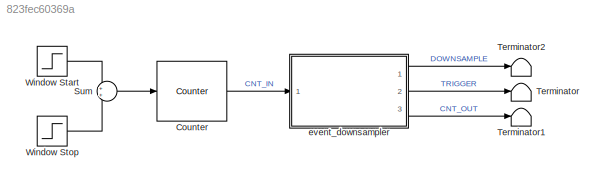
MODEL slx_823fec60369a
KIND model
CONFIG AbsTol = auto
CONFIG EnableMultiTasking = off
CONFIG FixedStep = model_Ts
CONFIG MaxStep = auto
CONFIG MinStep = auto
CONFIG RelTol = 1e-3
CONFIG SampleTimeConstraint = Unconstrained
CONFIG SolverName = FixedStepDiscrete
CONFIG StartTime = 0.0
CONFIG StopTime = 5
WORKSPACE source: mxarray member
WORKSPACE FSM_Ts: Simulink.Parameter (value not decoded)
WORKSPACE model_Ts: Simulink.Parameter (value not decoded)
BLOCK [Reference] Counter  REF=dspswit3/Counter
  Ports = [1, 1]
  SourceBlock = dspswit3/Counter
  SourceProductBaseCode = DS
  SourceType = Counter
BLOCK [Sum] Sum
  Ports = [2, 1]
BLOCK [Terminator] Terminator
BLOCK [Terminator] Terminator1
BLOCK [Terminator] Terminator2
BLOCK [Step] Window Start
  SampleTime = 0
  Time = 0.1
BLOCK [Step] Window Stop
  After = -1
  SampleTime = 0
  Time = 2.5
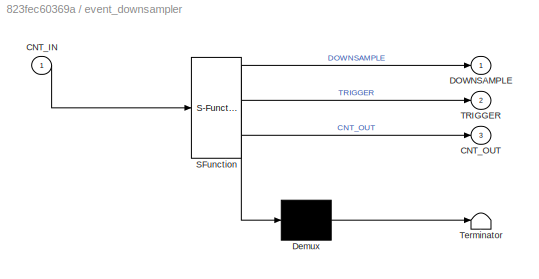
BLOCK [SubSystem] event_downsampler
  ErrorFcn = Stateflow.Translate.translate
  PermitHierarchicalResolution = ExplicitOnly
  Ports = [1, 3]
  RequestExecContextInheritance = off
  SFBlockType = Chart
  TreatAsAtomicUnit = on
BLOCK [Demux] event_downsampler/ Demux 
  Outputs = 1
  Ports = [1, 1]
BLOCK [S-Function] event_downsampler/ SFunction 
  EnableBusSupport = on
  FunctionName = sf_sfun
  PortCounts = [1 4]
  Ports = [1, 4]
  SFcnIsStateOwnerBlock = off
  SFunctionDeploymentMode = off
  Tag = Stateflow S-Function 3
BLOCK [Terminator] event_downsampler/ Terminator 
BLOCK [Inport] event_downsampler/CNT_IN
BLOCK [Outport] event_downsampler/CNT_OUT
  Port = 3
BLOCK [Outport] event_downsampler/DOWNSAMPLE
BLOCK [Outport] event_downsampler/TRIGGER
  Port = 2
LINE Counter:1 -> event_downsampler:1
LINE Sum:1 -> Counter:1
LINE Window Start:1 -> Sum:1
LINE Window Stop:1 -> Sum:2
LINE event_downsampler:1 -> Terminator2:1
LINE event_downsampler:2 -> Terminator:1
LINE event_downsampler:3 -> Terminator1:1
CHART event_downsampler states=6 transitions=9
  STATE_LABEL 'EvalOccurence'
  STATE_LABEL 'Run\n\nentry:\nlatch_1 = CNT_IN;'
  STATE_LABEL '[CNT_IN - latch_1 < THRES_CNT]\n/send(ev_passthrough, EventHandler)'
  STATE_LABEL 'after(CHECK_PER, sec)'
  STATE_LABEL '/send(ev_downsample, EventHandler)'
  STATE_LABEL 'Run\n\nentry:\nlatch_1 = CNT_IN;'
  STATE_LABEL 'EventHandler'
  STATE_LABEL 'Downsample_Wait\n\nentry:\nDOWNSAMPLE = true;\nTRIGGER = false;\nlatch_2 = CNT_IN;\n'
  STATE_LABEL 'PassThrough\n\nentry:\nDOWNSAMPLE = false;\nTRIGGER = false;\nCNT_OUT = uint32(0);'
  STATE_LABEL 'Downsample_Trigger\n\nentry:\nTRIGGER = true;\nCNT_OUT = CNT_IN - latch_2;'
  STATE_LABEL 'after(1, tick)'
  STATE_LABEL 'ev_downsample'
  STATE_LABEL 'ev_passthrough'
  STATE_LABEL 'after(CHECK_PER, sec)'
  STATE_LABEL 'Downsample_Wait\n\nentry:\nDOWNSAMPLE = true;\nTRIGGER = false;\nlatch_2 = CNT_IN;\n'
  STATE_LABEL 'PassThrough\n\nentry:\nDOWNSAMPLE = false;\nTRIGGER = false;\nCNT_OUT = uint32(0);'
  STATE_LABEL 'Downsample_Trigger\n\nentry:\nTRIGGER = true;\nCNT_OUT = CNT_IN - latch_2;'
CHART  states=0 transitions=0
